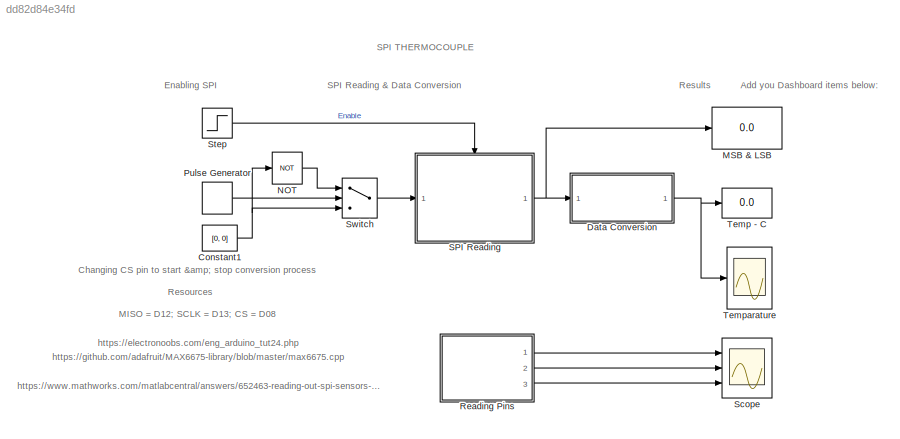
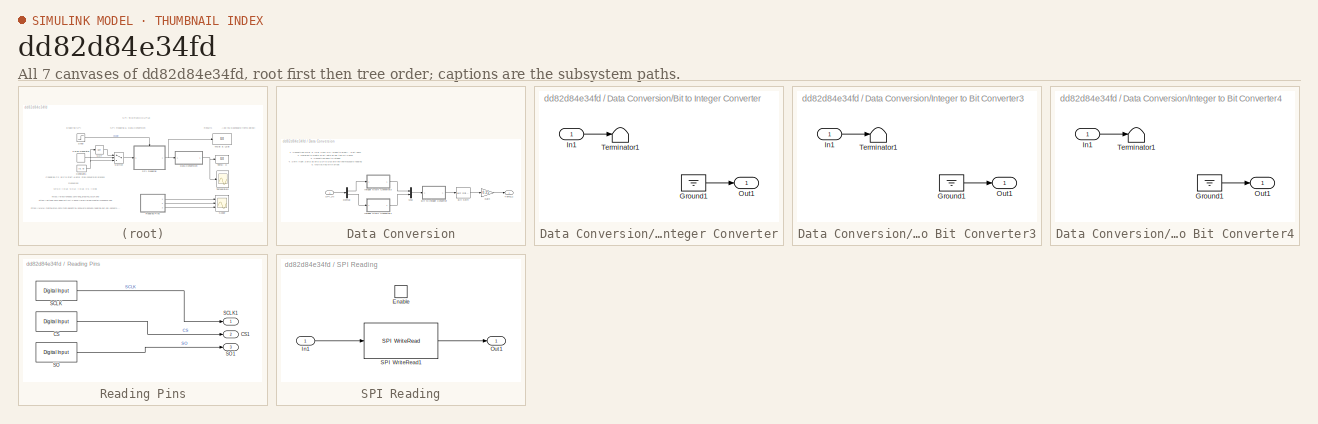
[diagram: thumbnail index - all 7 canvases of the model, root first then tree order]
MODEL slx_dd82d84e34fd
KIND model
CONFIG AbsTol = auto
CONFIG EnableMultiTasking = on
CONFIG FixedStep = auto
CONFIG MaxStep = auto
CONFIG MinStep = auto
CONFIG RelTol = 1e-3
CONFIG SampleTimeConstraint = Unconstrained
CONFIG SolverName = ode45
CONFIG StartTime = 0.0
CONFIG StopTime = 10.0
BLOCK [Constant] Constant1
  OutDataTypeStr = uint8
  Value = [0, 0]
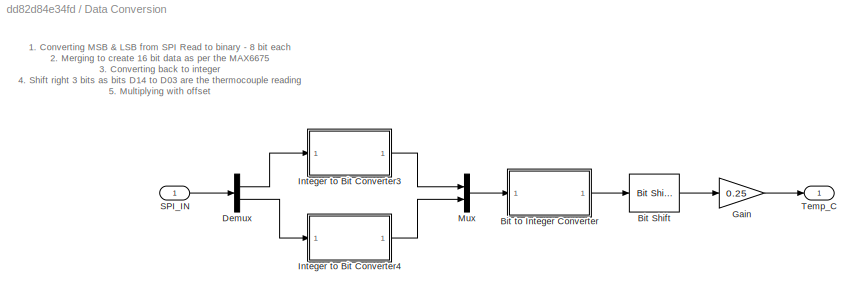
BLOCK [SubSystem] Data Conversion
  Ports = [1, 1]
  RequestExecContextInheritance = off
BLOCK [Reference] Data Conversion/Bit Shift  REF=hdlsllib/Logic and Bit
Operations/Bit Shift
  Ports = [1, 1]
  SourceBlock = hdlsllib/Logic and Bit\nOperations/Bit Shift
  SourceProductBaseCode = SL
  SourceType = Bit Shift
BLOCK [SubSystem] Data Conversion/Bit to Integer Converter
  Description = Replaced Block
  Ports = [1, 1]
  RequestExecContextInheritance = off
BLOCK [Ground] Data Conversion/Bit to Integer Converter/Ground1
BLOCK [Inport] Data Conversion/Bit to Integer Converter/In1
BLOCK [Outport] Data Conversion/Bit to Integer Converter/Out1
BLOCK [Terminator] Data Conversion/Bit to Integer Converter/Terminator1
BLOCK [Demux] Data Conversion/Demux
  Outputs = 2
  Ports = [1, 2]
BLOCK [Gain] Data Conversion/Gain
  Gain = 0.25
BLOCK [SubSystem] Data Conversion/Integer to Bit Converter3
  Description = Replaced Block
  Ports = [1, 1]
  RequestExecContextInheritance = off
BLOCK [Ground] Data Conversion/Integer to Bit Converter3/Ground1
BLOCK [Inport] Data Conversion/Integer to Bit Converter3/In1
BLOCK [Outport] Data Conversion/Integer to Bit Converter3/Out1
BLOCK [Terminator] Data Conversion/Integer to Bit Converter3/Terminator1
BLOCK [SubSystem] Data Conversion/Integer to Bit Converter4
  Description = Replaced Block
  Ports = [1, 1]
  RequestExecContextInheritance = off
BLOCK [Ground] Data Conversion/Integer to Bit Converter4/Ground1
BLOCK [Inport] Data Conversion/Integer to Bit Converter4/In1
BLOCK [Outport] Data Conversion/Integer to Bit Converter4/Out1
BLOCK [Terminator] Data Conversion/Integer to Bit Converter4/Terminator1
BLOCK [Mux] Data Conversion/Mux
  DisplayOption = bar
  Inputs = 2
  Ports = [2, 1]
BLOCK [Inport] Data Conversion/SPI_IN
BLOCK [Outport] Data Conversion/Temp_C
BLOCK [Display] MSB & LSB
  Decimation = 1
  Ports = [1]
BLOCK [Logic] NOT
  AllPortsSameDT = off
  IconShape = distinctive
  Operator = NOT
  OutDataTypeStr = boolean
  Ports = [1, 1]
BLOCK [DiscretePulseGenerator] Pulse Generator
  Period = 1
  Ports = [0, 1]
  PulseType = Time based
  PulseWidth = 50
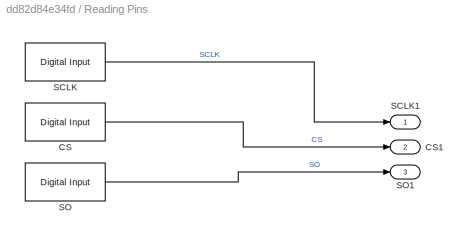
BLOCK [SubSystem] Reading Pins
  Ports = [0, 3]
  RequestExecContextInheritance = off
BLOCK [Reference] Reading Pins/CS  REF=arduinolib/Digital Input
  Commented = on
  Ports = [0, 1]
  SourceBlock = arduinolib/Digital Input
  SourceProductBaseCode = ARDUINO
  SourceType = Arduino Digital Input
BLOCK [Outport] Reading Pins/CS1
  Port = 2
BLOCK [Reference] Reading Pins/SCLK  REF=arduinolib/Digital Input
  Commented = on
  Ports = [0, 1]
  SourceBlock = arduinolib/Digital Input
  SourceProductBaseCode = ARDUINO
  SourceType = Arduino Digital Input
BLOCK [Outport] Reading Pins/SCLK1
BLOCK [Reference] Reading Pins/SO  REF=arduinolib/Digital Input
  Commented = on
  Ports = [0, 1]
  SourceBlock = arduinolib/Digital Input
  SourceProductBaseCode = ARDUINO
  SourceType = Arduino Digital Input
BLOCK [Outport] Reading Pins/SO1
  Port = 3
BLOCK [SubSystem] SPI Reading
  Ports = [1, 1, 1]
  RequestExecContextInheritance = off
BLOCK [EnablePort] SPI Reading/Enable
  Ports = []
BLOCK [Inport] SPI Reading/In1
BLOCK [Outport] SPI Reading/Out1
BLOCK [Reference] SPI Reading/SPI WriteRead1  REF=arduinolib/SPI WriteRead
  Ports = [1, 1]
  SourceBlock = arduinolib/SPI WriteRead
  SourceProductBaseCode = ARDUINO
  SourceType = SPI WriteRead
BLOCK [Scope] Scope
  Floating = off
  NumInputPorts = 3
  Ports = [3]
  ScopeSpecificationString = Simulink.scopes.TimeScopeBlockCfg('CurrentConfiguration', extmgr.ConfigurationSet(extmgr.Configuration('Core','General UI',true),extmgr.Configuration('Core','Source UI',true),extmgr.Configuration('Sources','WiredSimulink',true),extmgr.Configuration('Visuals','Time Domain',true,'SerializedDisplays',{struct('MinYLimReal','-1.00000','MaxYLimReal','1.00000','YLabelReal','','MinYLimMag','0.00000','MaxY...<+1438ch>
BLOCK [Step] Step
  SampleTime = 0
BLOCK [Switch] Switch
  Criteria = u2 > Threshold
  InputSameDT = off
  SaturateOnIntegerOverflow = off
BLOCK [Display] Temp - C
  Decimation = 1
  Ports = [1]
BLOCK [Scope] Temparature
  Floating = off
  NumInputPorts = 1
  Ports = [1]
  ScopeSpecificationString = Simulink.scopes.TimeScopeBlockCfg('CurrentConfiguration', extmgr.ConfigurationSet(extmgr.Configuration('Core','General UI',true),extmgr.Configuration('Core','Source UI',true),extmgr.Configuration('Sources','WiredSimulink',true,'DataLoggingVariableName','ScopeData1'),extmgr.Configuration('Visuals','Time Domain',true),extmgr.Configuration('Tools','Plot Navigation',true),extmgr.Configuration('Tools',...<+40ch>
ANNOTATION (root): MISO = D12; SCLK = D13; CS = D08
ANNOTATION (root): https://electronoobs.com/eng_arduino_tut24.php
ANNOTATION (root): https://github.com/adafruit/MAX6675-library/blob/master/max6675.cpp
ANNOTATION (root): https://www.mathworks.com/matlabcentral/answers/652463-reading-out-spi-sensors-via-arduino?s_tid=srchtitle
ANNOTATION (root): Changing CS pin to start & stop conversion process
ANNOTATION (root): Add you Dashboard items below:
ANNOTATION (root): Enabling SPI
ANNOTATION (root): Resources
ANNOTATION (root): Results
ANNOTATION (root): SPI Reading & Data Conversion
ANNOTATION (root): SPI THERMOCOUPLE
ANNOTATION Data Conversion: 1. Converting MSB & LSB from SPI Read to binary - 8 bit each 2. Merging to create 16 bit data as per the MAX6675 3. Converting back to integer 4. Shift right 3 bits as bits D14 to D03 are the thermocouple reading 5. Multiplying with offset
NET Constant1:1 -> NOT:1, Switch:3
LINE Data Conversion/Bit Shift:1 -> Data Conversion/Gain:1
LINE Data Conversion/Bit to Integer Converter/Ground1:1 -> Data Conversion/Bit to Integer Converter/Out1:1
LINE Data Conversion/Bit to Integer Converter/In1:1 -> Data Conversion/Bit to Integer Converter/Terminator1:1
LINE Data Conversion/Bit to Integer Converter:1 -> Data Conversion/Bit Shift:1
LINE Data Conversion/Demux:1 -> Data Conversion/Integer to Bit Converter3:1
LINE Data Conversion/Demux:2 -> Data Conversion/Integer to Bit Converter4:1
LINE Data Conversion/Gain:1 -> Data Conversion/Temp_C:1
LINE Data Conversion/Integer to Bit Converter3/Ground1:1 -> Data Conversion/Integer to Bit Converter3/Out1:1
LINE Data Conversion/Integer to Bit Converter3/In1:1 -> Data Conversion/Integer to Bit Converter3/Terminator1:1
LINE Data Conversion/Integer to Bit Converter3:1 -> Data Conversion/Mux:1
LINE Data Conversion/Integer to Bit Converter4/Ground1:1 -> Data Conversion/Integer to Bit Converter4/Out1:1
LINE Data Conversion/Integer to Bit Converter4/In1:1 -> Data Conversion/Integer to Bit Converter4/Terminator1:1
LINE Data Conversion/Integer to Bit Converter4:1 -> Data Conversion/Mux:2
LINE Data Conversion/Mux:1 -> Data Conversion/Bit to Integer Converter:1
LINE Data Conversion/SPI_IN:1 -> Data Conversion/Demux:1
NET Data Conversion:1 -> Temp - C:1, Temparature:1
LINE NOT:1 -> Switch:1
LINE Pulse Generator:1 -> Switch:2
LINE Reading Pins/CS:1 -> Reading Pins/CS1:1
LINE Reading Pins/SCLK:1 -> Reading Pins/SCLK1:1
LINE Reading Pins/SO:1 -> Reading Pins/SO1:1
LINE Reading Pins:1 -> Scope:1
LINE Reading Pins:2 -> Scope:2
LINE Reading Pins:3 -> Scope:3
LINE SPI Reading/In1:1 -> SPI Reading/SPI WriteRead1:1
LINE SPI Reading/SPI WriteRead1:1 -> SPI Reading/Out1:1
NET SPI Reading:1 -> Data Conversion:1, MSB & LSB:1
LINE Step:1 -> SPI Reading:enable
LINE Switch:1 -> SPI Reading:1
note: NET lines group one-source signal fan-out (src -> all destinations, sorted); 1:1 wires keep LINE
